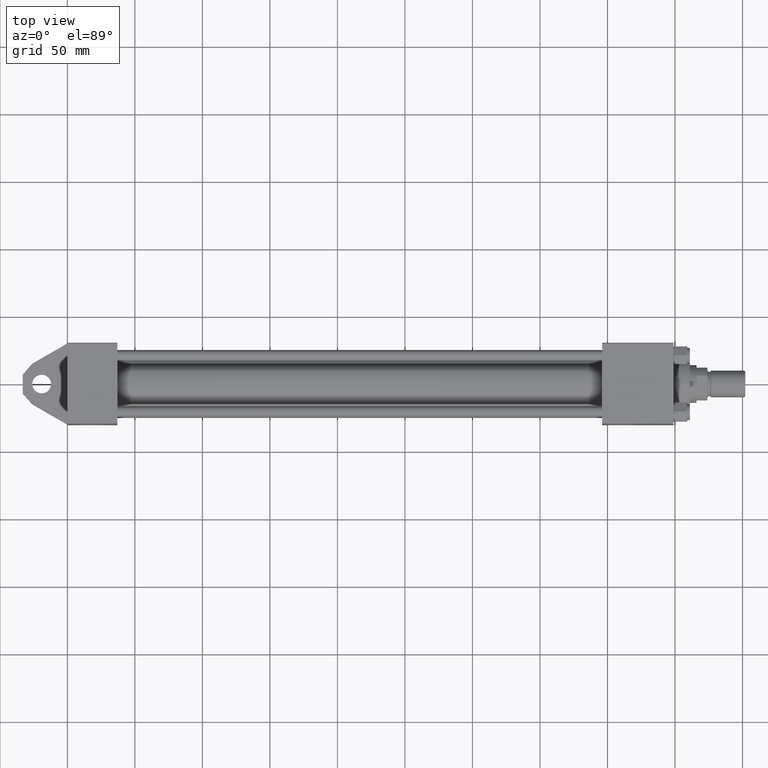
[diagram: clean part render]
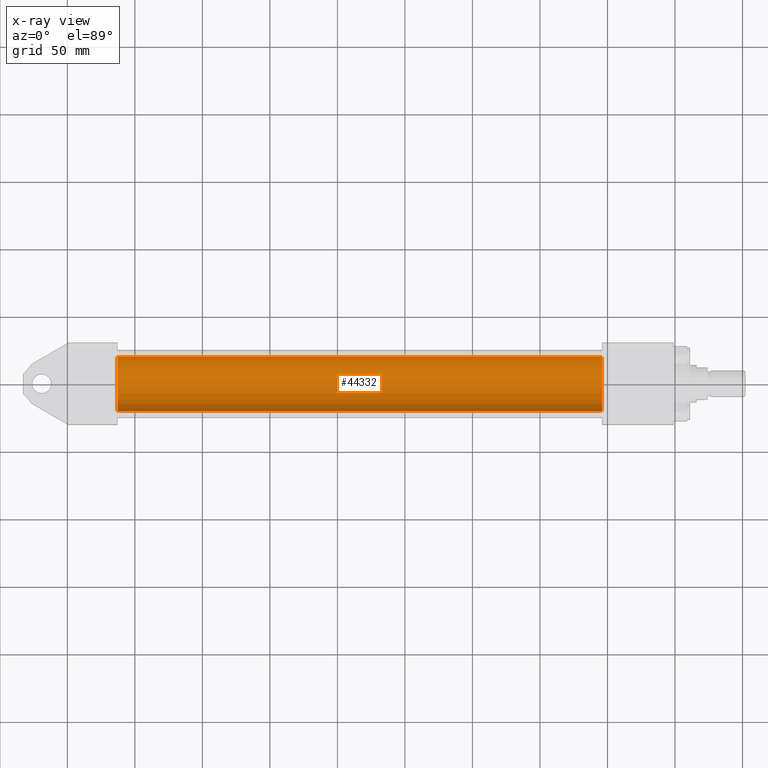
[diagram: x-ray — body ghosted, one internal face saturated and labeled with its STEP entity id]
A machine part, top view, then the same camera in x-ray: the body is ghosted and one INTERNAL B-rep face — a face not visible from any outside direction — is saturated and labeled: STEP entity #44332.
In plain terms, the highlighted cylindrical surface (edge-blend (fillet) strip) has radius 20 mm, axis along (-1, -0, 0).
Its self-contained STEP definition (entity closure, byte-faithful):
#1508 = DIRECTION ( 'NONE',  ( 0.000000000000000000, 0.000000000000000000, -1.000000000000000000 ) ) ;
#3259 = VERTEX_POINT ( 'NONE', #4681 ) ;
#3415 = CIRCLE ( 'NONE', #31952, 20.00000000000000000 ) ;
#4069 = LINE ( 'NONE', #44292, #14770 ) ;
#4681 = CARTESIAN_POINT ( 'NONE',  ( 395.9999999999999432, -1.527916156705042519E-16, -20.00000000000000000 ) ) ;
#4720 = CARTESIAN_POINT ( 'NONE',  ( 395.9999999999999432, -1.527916156705042519E-16, -20.00000000000000000 ) ) ;
#5867 = CARTESIAN_POINT ( 'NONE',  ( 395.9999999999999432, -2.602085213965210642E-15, 20.00000000000000000 ) ) ;
#7769 = DIRECTION ( 'NONE',  ( -1.000000000000000000, -0.000000000000000000, -0.000000000000000000 ) ) ;
#8247 = CIRCLE ( 'NONE', #35254, 20.00000000000000000 ) ;
#8261 = EDGE_CURVE ( 'NONE', #16448, #44980, #3415, .T. ) ;
#8278 = AXIS2_PLACEMENT_3D ( 'NONE', #42880, #46408, #35358 ) ;
#8337 = CARTESIAN_POINT ( 'NONE',  ( 395.9999999999999432, -2.602085213965210642E-15, 0.000000000000000000 ) ) ;
#11787 = LINE ( 'NONE', #4720, #44676 ) ;
#13930 = DIRECTION ( 'NONE',  ( 1.000000000000000000, 0.000000000000000000, 0.000000000000000000 ) ) ;
#14647 = ORIENTED_EDGE ( 'NONE', *, *, #32245, .T. ) ;
#14770 = VECTOR ( 'NONE', #36765, 1000.000000000000000 ) ;
#15895 = CARTESIAN_POINT ( 'NONE',  ( 37.00000000000000000, -1.527916156705042519E-16, -20.00000000000000000 ) ) ;
#16256 = EDGE_LOOP ( 'NONE', ( #24786, #14647, #25216, #42163 ) ) ;
#16448 = VERTEX_POINT ( 'NONE', #35247 ) ;
#18353 = DIRECTION ( 'NONE',  ( 0.000000000000000000, 0.000000000000000000, -1.000000000000000000 ) ) ;
#21034 = CYLINDRICAL_SURFACE ( 'NONE', #8278, 20.00000000000000000 ) ;
#21209 = CARTESIAN_POINT ( 'NONE',  ( 37.00000000000000000, -2.602085213965210642E-15, 0.000000000000000000 ) ) ;
#22686 = DIRECTION ( 'NONE',  ( 1.000000000000000000, 0.000000000000000000, 0.000000000000000000 ) ) ;
#24786 = ORIENTED_EDGE ( 'NONE', *, *, #43186, .T. ) ;
#25216 = ORIENTED_EDGE ( 'NONE', *, *, #8261, .F. ) ;
#25238 = FACE_OUTER_BOUND ( 'NONE', #16256, .T. ) ;
#31952 = AXIS2_PLACEMENT_3D ( 'NONE', #21209, #13930, #18353 ) ;
#32245 = EDGE_CURVE ( 'NONE', #3259, #44980, #11787, .T. ) ;
#35247 = CARTESIAN_POINT ( 'NONE',  ( 37.00000000000000000, -2.602085213965210642E-15, 20.00000000000000000 ) ) ;
#35254 = AXIS2_PLACEMENT_3D ( 'NONE', #8337, #22686, #1508 ) ;
#35358 = DIRECTION ( 'NONE',  ( 0.000000000000000000, 0.000000000000000000, 1.000000000000000000 ) ) ;
#35656 = EDGE_CURVE ( 'NONE', #38362, #16448, #4069, .T. ) ;
#36765 = DIRECTION ( 'NONE',  ( -1.000000000000000000, -0.000000000000000000, -0.000000000000000000 ) ) ;
#38362 = VERTEX_POINT ( 'NONE', #5867 ) ;
#42163 = ORIENTED_EDGE ( 'NONE', *, *, #35656, .F. ) ;
#42880 = CARTESIAN_POINT ( 'NONE',  ( 395.9999999999999432, -2.602085213965210642E-15, 0.000000000000000000 ) ) ;
#43186 = EDGE_CURVE ( 'NONE', #38362, #3259, #8247, .T. ) ;
#44292 = CARTESIAN_POINT ( 'NONE',  ( 395.9999999999999432, -2.602085213965210642E-15, 20.00000000000000000 ) ) ;
#44332 = ADVANCED_FACE ( 'NONE', ( #25238 ), #21034, .F. ) ;
#44676 = VECTOR ( 'NONE', #7769, 1000.000000000000000 ) ;
#44980 = VERTEX_POINT ( 'NONE', #15895 ) ;
#46408 = DIRECTION ( 'NONE',  ( -1.000000000000000000, -0.000000000000000000, -0.000000000000000000 ) ) ;